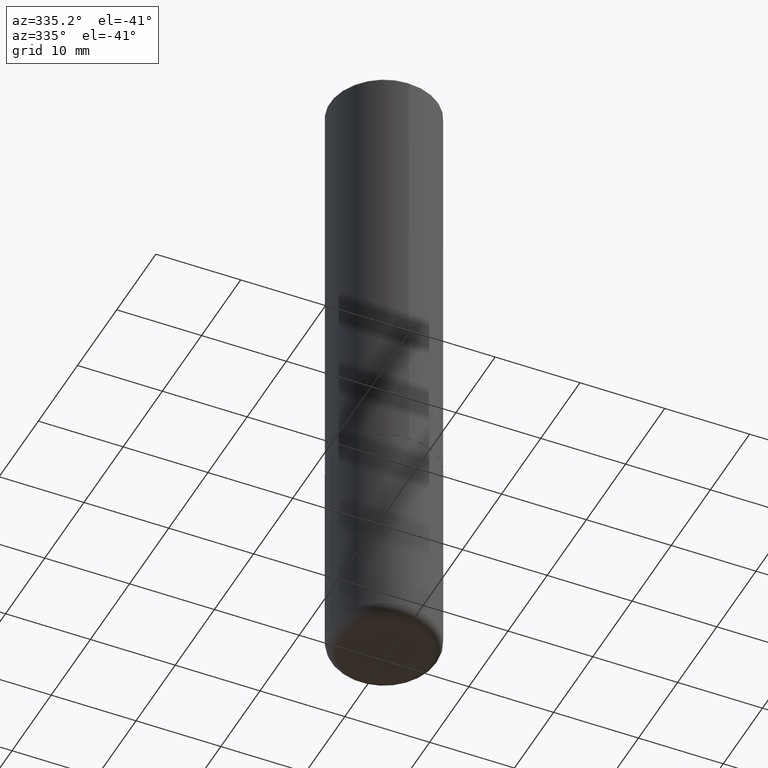
[diagram: clean part render]
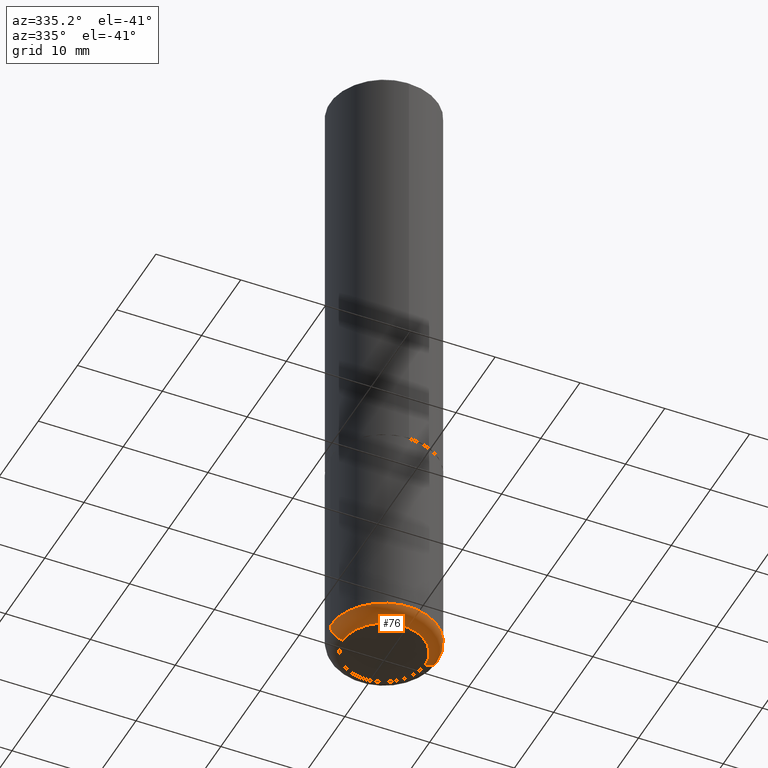
[diagram: same view with one face highlighted and labeled with its STEP entity id]
A machine part, auxiliary view. The second image highlights one B-rep face of the part: STEP entity #76.
In plain terms, the highlighted toroidal blend (fillet) surface has major radius 4.826 mm and minor (blend) radius 1.524 mm.
Its self-contained STEP definition (entity closure, byte-faithful):
#15 = CIRCLE ( 'NONE', #191, 0.1899999999999999745 ) ;
#24 = DIRECTION ( 'NONE',  ( -2.445468806185136597E-29, 3.491481338843145583E-15, 1.000000000000000000 ) ) ;
#34 = EDGE_CURVE ( 'NONE', #225, #88, #393, .T. ) ;
#40 = EDGE_CURVE ( 'NONE', #84, #383, #15, .T. ) ;
#55 = EDGE_LOOP ( 'NONE', ( #334, #57, #402, #409 ) ) ;
#57 = ORIENTED_EDGE ( 'NONE', *, *, #40, .T. ) ;
#61 = DIRECTION ( 'NONE',  ( -6.982962677686266711E-15, -1.000000000000000000, 3.491481338843145583E-15 ) ) ;
#62 = AXIS2_PLACEMENT_3D ( 'NONE', #326, #68, #319 ) ;
#68 = DIRECTION ( 'NONE',  ( 7.105427357601001859E-15, 1.000000000000000000, -3.491481338843145583E-15 ) ) ;
#76 = ADVANCED_FACE ( 'NONE', ( #109 ), #145, .T. ) ;
#84 = VERTEX_POINT ( 'NONE', #89 ) ;
#86 = CARTESIAN_POINT ( 'NONE',  ( 0.2499999999999998335, -1.201069580562041471E-14, -2.940000000000000391 ) ) ;
#88 = VERTEX_POINT ( 'NONE', #86 ) ;
#89 = CARTESIAN_POINT ( 'NONE',  ( -0.1899999999999999745, -8.806505557691924342E-15, -2.999999999999999556 ) ) ;
#109 = FACE_OUTER_BOUND ( 'NONE', #55, .T. ) ;
#117 = AXIS2_PLACEMENT_3D ( 'NONE', #134, #61, #389 ) ;
#134 = CARTESIAN_POINT ( 'NONE',  ( 0.1899999999999999745, -1.159171804495923808E-14, -2.940000000000000391 ) ) ;
#136 = DIRECTION ( 'NONE',  ( -2.445468806185136597E-29, 3.491481338843145583E-15, 1.000000000000000000 ) ) ;
#137 = AXIS2_PLACEMENT_3D ( 'NONE', #390, #346, #358 ) ;
#145 = TOROIDAL_SURFACE ( 'NONE', #379, 0.1899999999999999745, 0.05999999999999968553 ) ;
#183 = CIRCLE ( 'NONE', #117, 0.05999999999999966471 ) ;
#191 = AXIS2_PLACEMENT_3D ( 'NONE', #412, #136, #353 ) ;
#225 = VERTEX_POINT ( 'NONE', #370 ) ;
#255 = DIRECTION ( 'NONE',  ( 1.000000000000000000, -6.982962677686265133E-15, 4.883557194083112340E-29 ) ) ;
#263 = CARTESIAN_POINT ( 'NONE',  ( 0.1899999999999999745, -1.180120692528982640E-14, -2.999999999999999556 ) ) ;
#290 = EDGE_CURVE ( 'NONE', #84, #225, #337, .T. ) ;
#319 = DIRECTION ( 'NONE',  ( -1.000000000000000000, 7.105427357600997914E-15, 0.000000000000000000 ) ) ;
#326 = CARTESIAN_POINT ( 'NONE',  ( -0.1899999999999999745, -8.914923938254659640E-15, -2.940000000000000391 ) ) ;
#334 = ORIENTED_EDGE ( 'NONE', *, *, #290, .F. ) ;
#337 = CIRCLE ( 'NONE', #62, 0.05999999999999966471 ) ;
#346 = DIRECTION ( 'NONE',  ( -2.445468806185136597E-29, 3.491481338843145583E-15, 1.000000000000000000 ) ) ;
#353 = DIRECTION ( 'NONE',  ( 1.000000000000000000, -6.982962677686273021E-15, 0.000000000000000000 ) ) ;
#358 = DIRECTION ( 'NONE',  ( 1.000000000000000000, -6.982962677686262766E-15, 0.000000000000000000 ) ) ;
#370 = CARTESIAN_POINT ( 'NONE',  ( -0.2499999999999998335, -8.488598296798600727E-15, -2.940000000000000391 ) ) ;
#375 = EDGE_CURVE ( 'NONE', #383, #88, #183, .T. ) ;
#377 = CARTESIAN_POINT ( 'NONE',  ( 7.189678290184301639E-29, -1.026495513619884961E-14, -2.940000000000000391 ) ) ;
#379 = AXIS2_PLACEMENT_3D ( 'NONE', #377, #24, #255 ) ;
#383 = VERTEX_POINT ( 'NONE', #263 ) ;
#389 = DIRECTION ( 'NONE',  ( 1.000000000000000000, -6.982962677686275388E-15, 0.000000000000000000 ) ) ;
#390 = CARTESIAN_POINT ( 'NONE',  ( 7.189678290184301639E-29, -1.026495513619884961E-14, -2.940000000000000391 ) ) ;
#393 = CIRCLE ( 'NONE', #137, 0.2500000000000000000 ) ;
#402 = ORIENTED_EDGE ( 'NONE', *, *, #375, .T. ) ;
#409 = ORIENTED_EDGE ( 'NONE', *, *, #34, .F. ) ;
#412 = CARTESIAN_POINT ( 'NONE',  ( 7.336406418555408669E-29, -1.047444401652943478E-14, -2.999999999999999556 ) ) ;